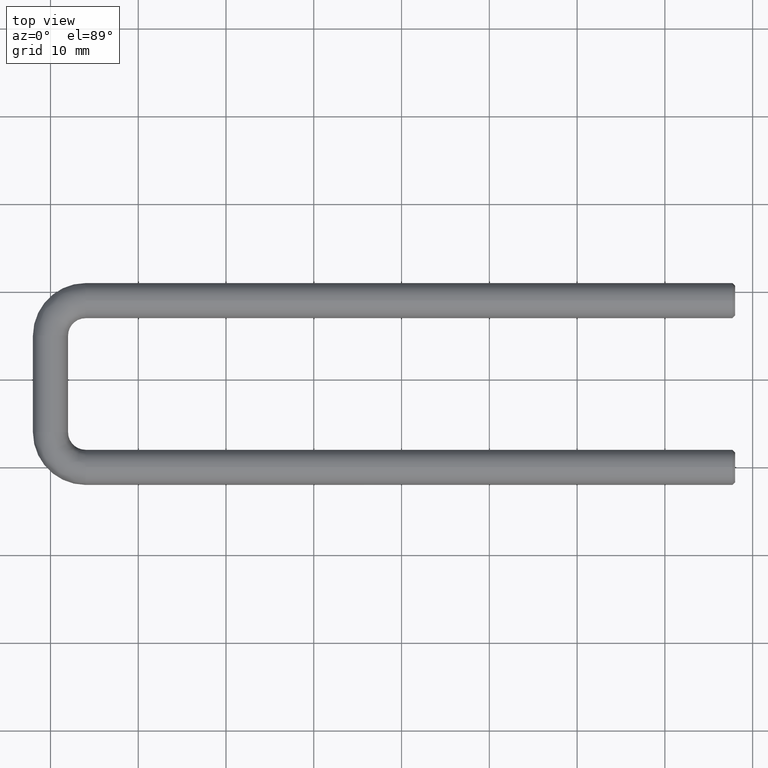
[diagram: clean part render]
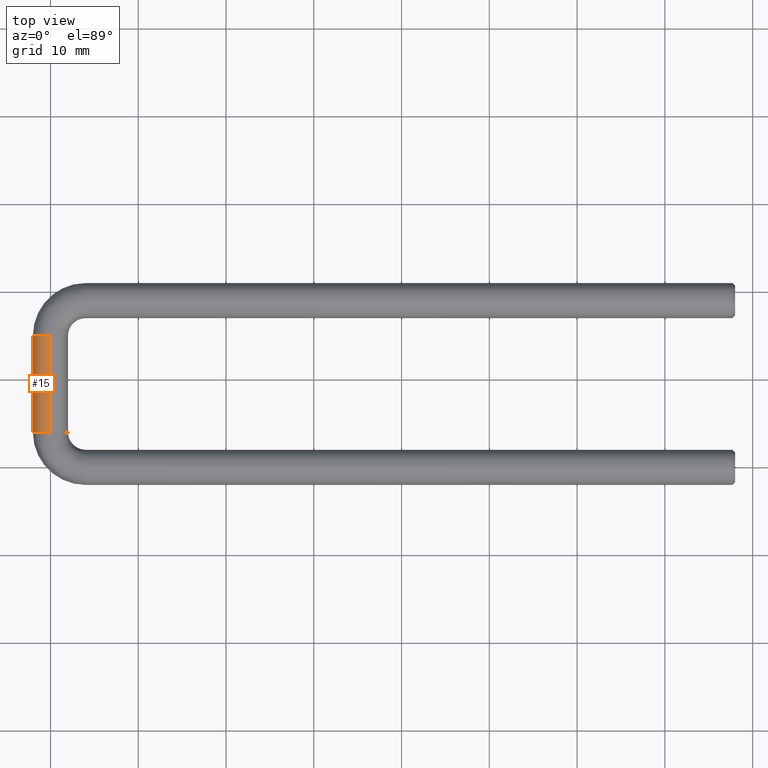
[diagram: same view with one face highlighted and labeled with its STEP entity id]
A machine part, top view. The second image highlights one B-rep face of the part: STEP entity #15.
In plain terms, the highlighted cylindrical surface (edge-blend (fillet) strip) has radius 2 mm, axis along (-0, -1, -0).
Its self-contained STEP definition (entity closure, byte-faithful):
#15 = ADVANCED_FACE ( 'NONE', ( #381 ), #498, .T. ) ;
#18 = EDGE_CURVE ( 'NONE', #175, #781, #352, .T. ) ;
#28 = VERTEX_POINT ( 'NONE', #484 ) ;
#29 = CARTESIAN_POINT ( 'NONE',  ( 0.0000000000000000000, 4.000000000000000000, -2.000000000000004900 ) ) ;
#56 = AXIS2_PLACEMENT_3D ( 'NONE', #69, #541, #789 ) ;
#58 = EDGE_CURVE ( 'NONE', #515, #123, #487, .T. ) ;
#67 = CARTESIAN_POINT ( 'NONE',  ( 2.449293598294709900E-016, 15.00000000000000000, 2.000000000000000000 ) ) ;
#69 = CARTESIAN_POINT ( 'NONE',  ( 0.0000000000000000000, 4.000000000000000000, 0.0000000000000000000 ) ) ;
#70 = CARTESIAN_POINT ( 'NONE',  ( 2.449293598294706400E-016, 15.00000000000000000, 2.000000000000000000 ) ) ;
#97 = EDGE_LOOP ( 'NONE', ( #401, #203, #148, #144, #139, #122 ) ) ;
#100 = CARTESIAN_POINT ( 'NONE',  ( 2.449293598294706400E-016, 4.000000000000000000, 1.999999999999995300 ) ) ;
#122 = ORIENTED_EDGE ( 'NONE', *, *, #732, .F. ) ;
#123 = VERTEX_POINT ( 'NONE', #29 ) ;
#139 = ORIENTED_EDGE ( 'NONE', *, *, #58, .F. ) ;
#144 = ORIENTED_EDGE ( 'NONE', *, *, #629, .T. ) ;
#148 = ORIENTED_EDGE ( 'NONE', *, *, #162, .F. ) ;
#153 = CARTESIAN_POINT ( 'NONE',  ( -2.000000000099083400, 4.000000000000000000, 3.284779882328786500E-011 ) ) ;
#159 = CARTESIAN_POINT ( 'NONE',  ( 0.0000000000000000000, 15.00000000000000000, -2.000000000000000000 ) ) ;
#162 = EDGE_CURVE ( 'NONE', #28, #175, #737, .T. ) ;
#175 = VERTEX_POINT ( 'NONE', #431 ) ;
#180 = DIRECTION ( 'NONE',  ( -0.0000000000000000000, -1.000000000000000000, -4.336808689942017700E-016 ) ) ;
#193 = AXIS2_PLACEMENT_3D ( 'NONE', #267, #262, #293 ) ;
#203 = ORIENTED_EDGE ( 'NONE', *, *, #18, .F. ) ;
#258 = EDGE_CURVE ( 'NONE', #781, #325, #260, .T. ) ;
#260 = LINE ( 'NONE', #70, #638 ) ;
#262 = DIRECTION ( 'NONE',  ( 0.0000000000000000000, 1.000000000000000000, 4.336808689942017700E-016 ) ) ;
#267 = CARTESIAN_POINT ( 'NONE',  ( 0.0000000000000000000, 15.00000000000000000, -6.755321789299919800E-041 ) ) ;
#293 = DIRECTION ( 'NONE',  ( 0.0000000000000000000, 0.0000000000000000000, -1.000000000000000000 ) ) ;
#325 = VERTEX_POINT ( 'NONE', #100 ) ;
#352 = CIRCLE ( 'NONE', #526, 2.000000000000000000 ) ;
#375 = DIRECTION ( 'NONE',  ( 1.000000000000000000, 0.0000000000000000000, 0.0000000000000000000 ) ) ;
#379 = DIRECTION ( 'NONE',  ( 0.0000000000000000000, -1.000000000000000000, 0.0000000000000000000 ) ) ;
#381 = FACE_OUTER_BOUND ( 'NONE', #97, .T. ) ;
#393 = CARTESIAN_POINT ( 'NONE',  ( 0.0000000000000000000, 4.000000000000000000, 0.0000000000000000000 ) ) ;
#401 = ORIENTED_EDGE ( 'NONE', *, *, #258, .F. ) ;
#431 = CARTESIAN_POINT ( 'NONE',  ( -2.000000000000000000, 14.99999999999999800, 8.861088314299350400E-010 ) ) ;
#484 = CARTESIAN_POINT ( 'NONE',  ( 0.0000000000000000000, 15.00000000000000000, -2.000000000000000000 ) ) ;
#487 = CIRCLE ( 'NONE', #666, 2.000000000000000000 ) ;
#498 = CYLINDRICAL_SURFACE ( 'NONE', #572, 2.000000000000000000 ) ;
#515 = VERTEX_POINT ( 'NONE', #153 ) ;
#526 = AXIS2_PLACEMENT_3D ( 'NONE', #565, #688, #643 ) ;
#541 = DIRECTION ( 'NONE',  ( 0.0000000000000000000, -1.000000000000000000, 0.0000000000000000000 ) ) ;
#565 = CARTESIAN_POINT ( 'NONE',  ( 0.0000000000000000000, 15.00000000000000000, -1.543026697945950100E-040 ) ) ;
#572 = AXIS2_PLACEMENT_3D ( 'NONE', #775, #778, #713 ) ;
#575 = DIRECTION ( 'NONE',  ( -0.0000000000000000000, -1.000000000000000000, -4.336808689942017700E-016 ) ) ;
#599 = CIRCLE ( 'NONE', #56, 2.000000000000000000 ) ;
#629 = EDGE_CURVE ( 'NONE', #28, #123, #696, .T. ) ;
#635 = VECTOR ( 'NONE', #575, 1000.000000000000000 ) ;
#638 = VECTOR ( 'NONE', #180, 1000.000000000000000 ) ;
#643 = DIRECTION ( 'NONE',  ( 0.0000000000000000000, 0.0000000000000000000, -1.000000000000000000 ) ) ;
#666 = AXIS2_PLACEMENT_3D ( 'NONE', #393, #379, #375 ) ;
#688 = DIRECTION ( 'NONE',  ( 0.0000000000000000000, 1.000000000000000000, 4.336808689942017700E-016 ) ) ;
#696 = LINE ( 'NONE', #159, #635 ) ;
#713 = DIRECTION ( 'NONE',  ( 0.0000000000000000000, 0.0000000000000000000, -1.000000000000000000 ) ) ;
#732 = EDGE_CURVE ( 'NONE', #325, #515, #599, .T. ) ;
#737 = CIRCLE ( 'NONE', #193, 2.000000000000000000 ) ;
#775 = CARTESIAN_POINT ( 'NONE',  ( 0.0000000000000000000, 15.00000000000000000, 0.0000000000000000000 ) ) ;
#778 = DIRECTION ( 'NONE',  ( -0.0000000000000000000, -1.000000000000000000, -4.336808689942017700E-016 ) ) ;
#781 = VERTEX_POINT ( 'NONE', #67 ) ;
#789 = DIRECTION ( 'NONE',  ( 1.000000000000000000, 0.0000000000000000000, 0.0000000000000000000 ) ) ;